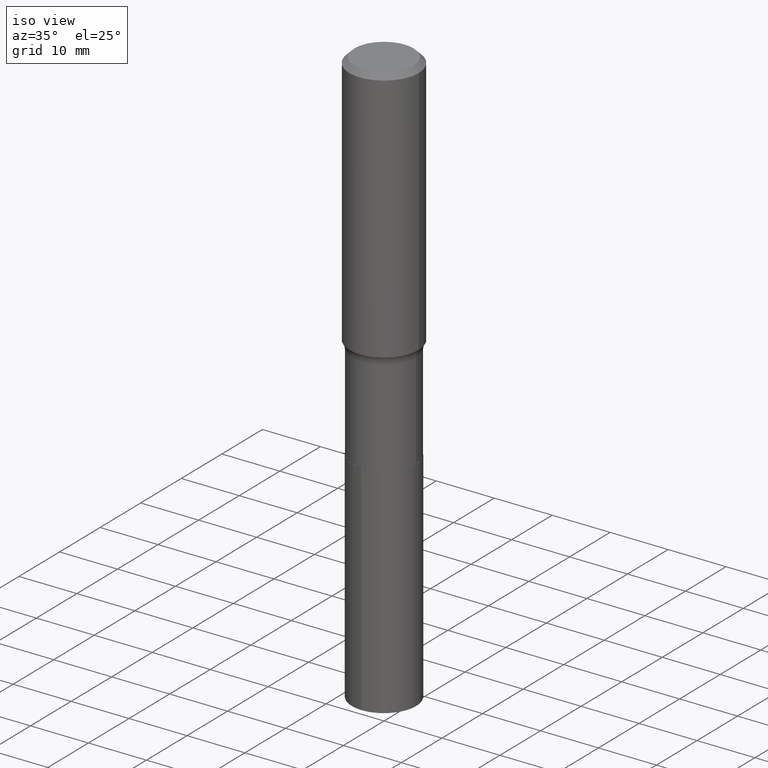
[diagram: clean part render]
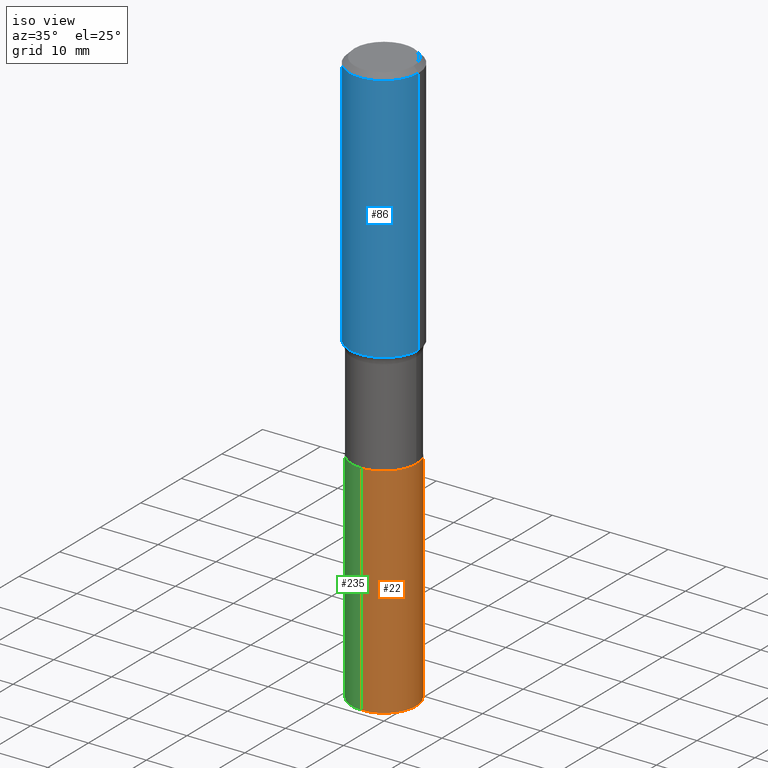
[diagram: same view with three faces highlighted in distinct colors, each labeled with its STEP entity id]
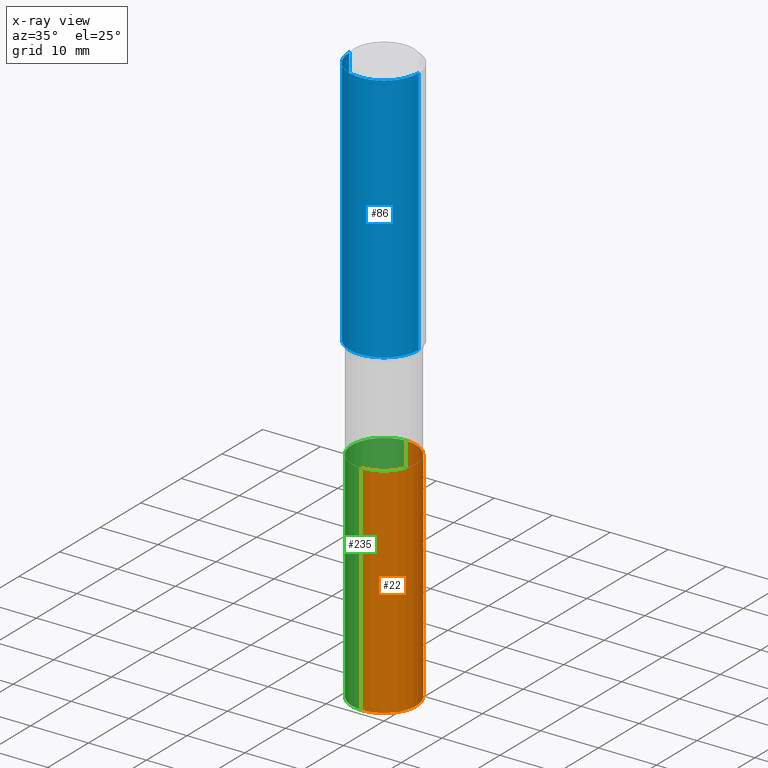
[diagram: x-ray of the same camera — body ghosted, the three highlighted faces saturated]
A machine part, iso view with three faces highlighted in distinct colors.
The next image is the same camera in x-ray (body ghosted, the three faces saturated) — at least one of them is partly hidden behind the body in this view.
Their STEP definitions:

[orange] entity #22 — the highlighted cylindrical surface (partial cylindrical patch) has radius 5.5562 mm, axis along (-0, 0, 1).
#3 = CARTESIAN_POINT ( 'NONE',  ( 5.969144809017299038E-29, -8.522356799982232966E-15, -2.440900000000000070 ) ) ;
#12 = AXIS2_PLACEMENT_3D ( 'NONE', #463, #348, #242 ) ;
#16 = CIRCLE ( 'NONE', #12, 0.2187500000000000000 ) ;
#17 = AXIS2_PLACEMENT_3D ( 'NONE', #116, #403, #215 ) ;
#22 = ADVANCED_FACE ( 'NONE', ( #297 ), #450, .T. ) ;
#33 = LINE ( 'NONE', #337, #131 ) ;
#42 = EDGE_LOOP ( 'NONE', ( #479, #169, #250, #471 ) ) ;
#78 = VECTOR ( 'NONE', #355, 39.37007874015748143 ) ;
#109 = VERTEX_POINT ( 'NONE', #431 ) ;
#116 = CARTESIAN_POINT ( 'NONE',  ( 9.604269145887782522E-29, -1.371197232010835065E-14, -3.927319263098560054 ) ) ;
#118 = CARTESIAN_POINT ( 'NONE',  ( -1.527523085743774602E-15, -0.2187500000000136835, -3.927319263098559166 ) ) ;
#128 = EDGE_CURVE ( 'NONE', #332, #109, #16, .T. ) ;
#129 = EDGE_CURVE ( 'NONE', #482, #332, #327, .T. ) ;
#131 = VECTOR ( 'NONE', #486, 39.37007874015748143 ) ;
#153 = DIRECTION ( 'NONE',  ( -2.445557876646980384E-29, 3.491353784872209594E-15, 1.000000000000000000 ) ) ;
#169 = ORIENTED_EDGE ( 'NONE', *, *, #378, .T. ) ;
#177 = CARTESIAN_POINT ( 'NONE',  ( -1.527523085743810890E-15, -0.2187500000000085210, -2.440899999999999181 ) ) ;
#188 = CARTESIAN_POINT ( 'NONE',  ( 1.554312234475315003E-15, 0.2187499999999862610, -3.927319263098560498 ) ) ;
#193 = DIRECTION ( 'NONE',  ( -6.982962677686265133E-15, -1.000000000000000000, 3.746534391310989557E-15 ) ) ;
#215 = DIRECTION ( 'NONE',  ( -6.982962677686265133E-15, -1.000000000000000000, 2.497689594207326371E-15 ) ) ;
#242 = DIRECTION ( 'NONE',  ( -6.982962677686265133E-15, -1.000000000000000000, 3.746534391310989557E-15 ) ) ;
#246 = CARTESIAN_POINT ( 'NONE',  ( -1.527523085743810890E-15, -0.2187500000000085210, -2.440899999999999181 ) ) ;
#250 = ORIENTED_EDGE ( 'NONE', *, *, #128, .F. ) ;
#293 = VERTEX_POINT ( 'NONE', #188 ) ;
#297 = FACE_OUTER_BOUND ( 'NONE', #42, .T. ) ;
#327 = LINE ( 'NONE', #246, #78 ) ;
#332 = VERTEX_POINT ( 'NONE', #177 ) ;
#337 = CARTESIAN_POINT ( 'NONE',  ( 1.554312234475278518E-15, 0.2187499999999914513, -2.440900000000000514 ) ) ;
#348 = DIRECTION ( 'NONE',  ( -2.445557876646980384E-29, 3.491353784872209594E-15, 1.000000000000000000 ) ) ;
#355 = DIRECTION ( 'NONE',  ( -2.445557876646980104E-29, 3.491353784872209594E-15, 1.000000000000000000 ) ) ;
#363 = AXIS2_PLACEMENT_3D ( 'NONE', #3, #153, #193 ) ;
#372 = CIRCLE ( 'NONE', #17, 0.2187500000000000000 ) ;
#378 = EDGE_CURVE ( 'NONE', #293, #109, #33, .T. ) ;
#403 = DIRECTION ( 'NONE',  ( -2.445557876646980384E-29, 3.491353784872209594E-15, 1.000000000000000000 ) ) ;
#427 = EDGE_CURVE ( 'NONE', #482, #293, #372, .T. ) ;
#431 = CARTESIAN_POINT ( 'NONE',  ( 1.554312234475315003E-15, 0.2187499999999914235, -2.440900000000000514 ) ) ;
#450 = CYLINDRICAL_SURFACE ( 'NONE', #363, 0.2187500000000000000 ) ;
#463 = CARTESIAN_POINT ( 'NONE',  ( 5.969144809017299038E-29, -8.522356799982232966E-15, -2.440900000000000070 ) ) ;
#471 = ORIENTED_EDGE ( 'NONE', *, *, #129, .F. ) ;
#479 = ORIENTED_EDGE ( 'NONE', *, *, #427, .T. ) ;
#482 = VERTEX_POINT ( 'NONE', #118 ) ;
#486 = DIRECTION ( 'NONE',  ( -2.445557876646980104E-29, 3.491353784872209594E-15, 1.000000000000000000 ) ) ;

[blue] entity #86 — the highlighted cylindrical surface (partial cylindrical patch) has radius 5.9995 mm, axis along (-0, 0, 1).
#18 = DIRECTION ( 'NONE',  ( -2.445468806185136877E-29, 3.491481338843145188E-15, 1.000000000000000000 ) ) ;
#19 = ORIENTED_EDGE ( 'NONE', *, *, #74, .T. ) ;
#32 = EDGE_CURVE ( 'NONE', #289, #214, #226, .T. ) ;
#35 = CARTESIAN_POINT ( 'NONE',  ( 0.2361999999999999933, -1.773078968304709514E-15, -0.03543000000000021826 ) ) ;
#40 = EDGE_LOOP ( 'NONE', ( #406, #361, #19, #347 ) ) ;
#58 = CARTESIAN_POINT ( 'NONE',  ( -0.2362000000000001043, 1.678301941865357380E-15, -1.161852468318209317E-29 ) ) ;
#63 = CARTESIAN_POINT ( 'NONE',  ( 0.2362000000000002153, -7.708946087136240734E-15, -1.735529912548379405 ) ) ;
#74 = EDGE_CURVE ( 'NONE', #214, #371, #454, .T. ) ;
#76 = DIRECTION ( 'NONE',  ( 1.000000000000000000, -6.982962677686266711E-15, 0.000000000000000000 ) ) ;
#86 = ADVANCED_FACE ( 'NONE', ( #269 ), #233, .T. ) ;
#115 = CARTESIAN_POINT ( 'NONE',  ( 4.244184263338279886E-29, -6.059570302666743420E-15, -1.735529912548379405 ) ) ;
#121 = CARTESIAN_POINT ( 'NONE',  ( 0.2362000000000001043, -1.649375784469496920E-15, 1.151752954443000508E-29 ) ) ;
#123 = DIRECTION ( 'NONE',  ( 1.000000000000000000, -6.982962677686266711E-15, 4.876176775795935793E-29 ) ) ;
#148 = DIRECTION ( 'NONE',  ( -2.445468806185136597E-29, 3.491481338843145583E-15, 1.000000000000000000 ) ) ;
#175 = CIRCLE ( 'NONE', #280, 0.2361999999999999933 ) ;
#189 = DIRECTION ( 'NONE',  ( -2.445468806185136597E-29, 3.491481338843145583E-15, 1.000000000000000000 ) ) ;
#208 = CARTESIAN_POINT ( 'NONE',  ( -0.2361999999999999933, -1.413334801385620726E-15, -0.03543000000000021826 ) ) ;
#214 = VERTEX_POINT ( 'NONE', #63 ) ;
#222 = DIRECTION ( 'NONE',  ( -2.445468806185136877E-29, 3.491481338843145188E-15, 1.000000000000000000 ) ) ;
#226 = CIRCLE ( 'NONE', #455, 0.2362000000000002153 ) ;
#230 = VERTEX_POINT ( 'NONE', #208 ) ;
#233 = CYLINDRICAL_SURFACE ( 'NONE', #312, 0.2362000000000001043 ) ;
#240 = EDGE_CURVE ( 'NONE', #289, #230, #391, .T. ) ;
#264 = CARTESIAN_POINT ( 'NONE',  ( 8.664295980313993487E-31, -1.237031838352134079E-16, -0.03543000000000021826 ) ) ;
#269 = FACE_OUTER_BOUND ( 'NONE', #40, .T. ) ;
#280 = AXIS2_PLACEMENT_3D ( 'NONE', #264, #148, #408 ) ;
#289 = VERTEX_POINT ( 'NONE', #366 ) ;
#306 = DIRECTION ( 'NONE',  ( -2.445468806185136597E-29, 3.491481338843145583E-15, 1.000000000000000000 ) ) ;
#309 = EDGE_CURVE ( 'NONE', #230, #371, #175, .T. ) ;
#312 = AXIS2_PLACEMENT_3D ( 'NONE', #369, #306, #123 ) ;
#347 = ORIENTED_EDGE ( 'NONE', *, *, #309, .F. ) ;
#361 = ORIENTED_EDGE ( 'NONE', *, *, #32, .T. ) ;
#366 = CARTESIAN_POINT ( 'NONE',  ( -0.2362000000000002153, -4.381268360801385448E-15, -1.735529912548379405 ) ) ;
#369 = CARTESIAN_POINT ( 'NONE',  ( 0.000000000000000000, 0.000000000000000000, 0.000000000000000000 ) ) ;
#371 = VERTEX_POINT ( 'NONE', #35 ) ;
#391 = LINE ( 'NONE', #58, #477 ) ;
#406 = ORIENTED_EDGE ( 'NONE', *, *, #240, .F. ) ;
#408 = DIRECTION ( 'NONE',  ( 1.000000000000000000, -6.982962677686266711E-15, 0.000000000000000000 ) ) ;
#437 = VECTOR ( 'NONE', #222, 39.37007874015748143 ) ;
#454 = LINE ( 'NONE', #121, #437 ) ;
#455 = AXIS2_PLACEMENT_3D ( 'NONE', #115, #189, #76 ) ;
#477 = VECTOR ( 'NONE', #18, 39.37007874015748143 ) ;

[green] entity #235 — the highlighted cylindrical surface (partial cylindrical patch) has radius 5.5562 mm, axis along (-0, 0, 1).
#8 = ORIENTED_EDGE ( 'NONE', *, *, #378, .F. ) ;
#24 = DIRECTION ( 'NONE',  ( -2.445557876646980384E-29, 3.491353784872209594E-15, 1.000000000000000000 ) ) ;
#25 = ORIENTED_EDGE ( 'NONE', *, *, #298, .F. ) ;
#33 = LINE ( 'NONE', #337, #131 ) ;
#41 = DIRECTION ( 'NONE',  ( -2.445557876646980384E-29, 3.491353784872209594E-15, 1.000000000000000000 ) ) ;
#53 = AXIS2_PLACEMENT_3D ( 'NONE', #282, #24, #98 ) ;
#64 = ORIENTED_EDGE ( 'NONE', *, *, #129, .T. ) ;
#78 = VECTOR ( 'NONE', #355, 39.37007874015748143 ) ;
#98 = DIRECTION ( 'NONE',  ( -6.982962677686265133E-15, -1.000000000000000000, 3.746534391310989557E-15 ) ) ;
#109 = VERTEX_POINT ( 'NONE', #431 ) ;
#118 = CARTESIAN_POINT ( 'NONE',  ( -1.527523085743774602E-15, -0.2187500000000136835, -3.927319263098559166 ) ) ;
#129 = EDGE_CURVE ( 'NONE', #482, #332, #327, .T. ) ;
#131 = VECTOR ( 'NONE', #486, 39.37007874015748143 ) ;
#177 = CARTESIAN_POINT ( 'NONE',  ( -1.527523085743810890E-15, -0.2187500000000085210, -2.440899999999999181 ) ) ;
#180 = EDGE_LOOP ( 'NONE', ( #8, #308, #64, #25 ) ) ;
#188 = CARTESIAN_POINT ( 'NONE',  ( 1.554312234475315003E-15, 0.2187499999999862610, -3.927319263098560498 ) ) ;
#227 = CARTESIAN_POINT ( 'NONE',  ( 5.969144809017299038E-29, -8.522356799982232966E-15, -2.440900000000000070 ) ) ;
#235 = ADVANCED_FACE ( 'NONE', ( #358 ), #360, .T. ) ;
#246 = CARTESIAN_POINT ( 'NONE',  ( -1.527523085743810890E-15, -0.2187500000000085210, -2.440899999999999181 ) ) ;
#260 = DIRECTION ( 'NONE',  ( -6.982962677686265133E-15, -1.000000000000000000, 3.746534391310989557E-15 ) ) ;
#282 = CARTESIAN_POINT ( 'NONE',  ( 5.969144809017299038E-29, -8.522356799982232966E-15, -2.440900000000000070 ) ) ;
#293 = VERTEX_POINT ( 'NONE', #188 ) ;
#298 = EDGE_CURVE ( 'NONE', #109, #332, #396, .T. ) ;
#305 = DIRECTION ( 'NONE',  ( -6.982962677686265133E-15, -1.000000000000000000, 2.497689594207326371E-15 ) ) ;
#308 = ORIENTED_EDGE ( 'NONE', *, *, #491, .T. ) ;
#320 = CIRCLE ( 'NONE', #365, 0.2187500000000000000 ) ;
#327 = LINE ( 'NONE', #246, #78 ) ;
#328 = AXIS2_PLACEMENT_3D ( 'NONE', #227, #373, #260 ) ;
#332 = VERTEX_POINT ( 'NONE', #177 ) ;
#337 = CARTESIAN_POINT ( 'NONE',  ( 1.554312234475278518E-15, 0.2187499999999914513, -2.440900000000000514 ) ) ;
#345 = CARTESIAN_POINT ( 'NONE',  ( 9.604269145887782522E-29, -1.371197232010835065E-14, -3.927319263098560054 ) ) ;
#355 = DIRECTION ( 'NONE',  ( -2.445557876646980104E-29, 3.491353784872209594E-15, 1.000000000000000000 ) ) ;
#358 = FACE_OUTER_BOUND ( 'NONE', #180, .T. ) ;
#360 = CYLINDRICAL_SURFACE ( 'NONE', #53, 0.2187500000000000000 ) ;
#365 = AXIS2_PLACEMENT_3D ( 'NONE', #345, #41, #305 ) ;
#373 = DIRECTION ( 'NONE',  ( -2.445557876646980384E-29, 3.491353784872209594E-15, 1.000000000000000000 ) ) ;
#378 = EDGE_CURVE ( 'NONE', #293, #109, #33, .T. ) ;
#396 = CIRCLE ( 'NONE', #328, 0.2187500000000000000 ) ;
#431 = CARTESIAN_POINT ( 'NONE',  ( 1.554312234475315003E-15, 0.2187499999999914235, -2.440900000000000514 ) ) ;
#482 = VERTEX_POINT ( 'NONE', #118 ) ;
#486 = DIRECTION ( 'NONE',  ( -2.445557876646980104E-29, 3.491353784872209594E-15, 1.000000000000000000 ) ) ;
#491 = EDGE_CURVE ( 'NONE', #293, #482, #320, .T. ) ;